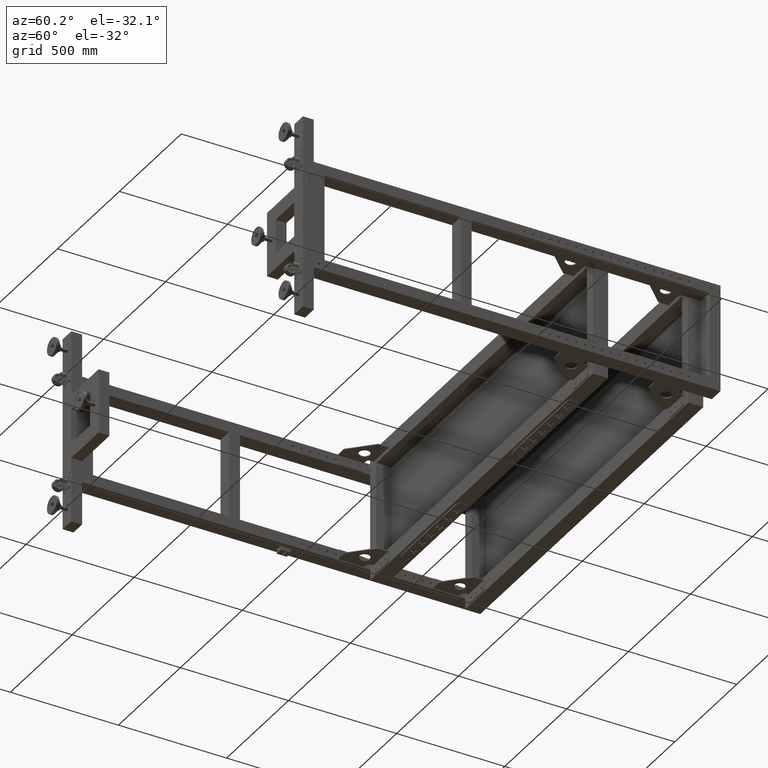
[diagram: clean part render]
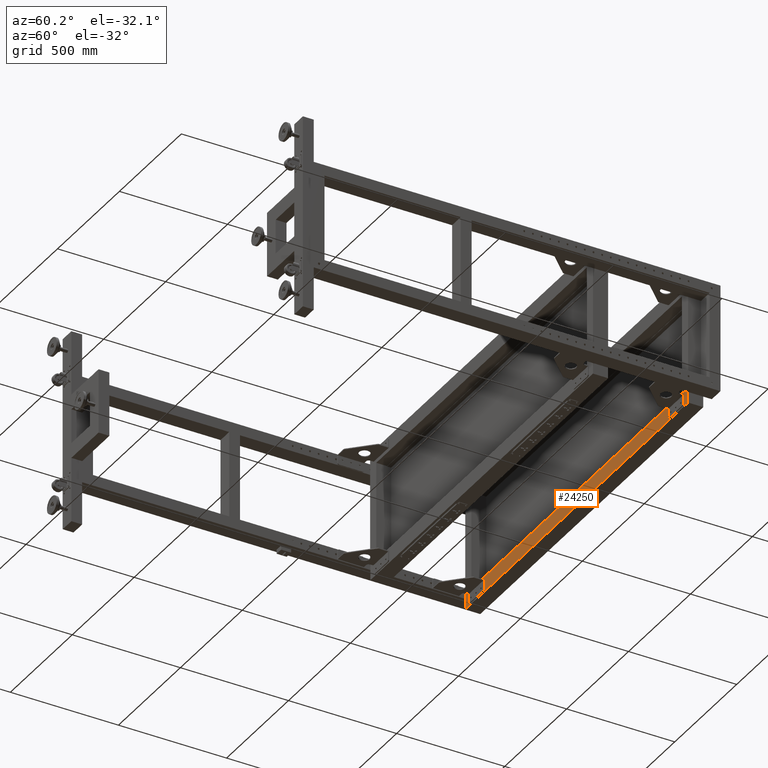
[diagram: same view with one face highlighted and labeled with its STEP entity id]
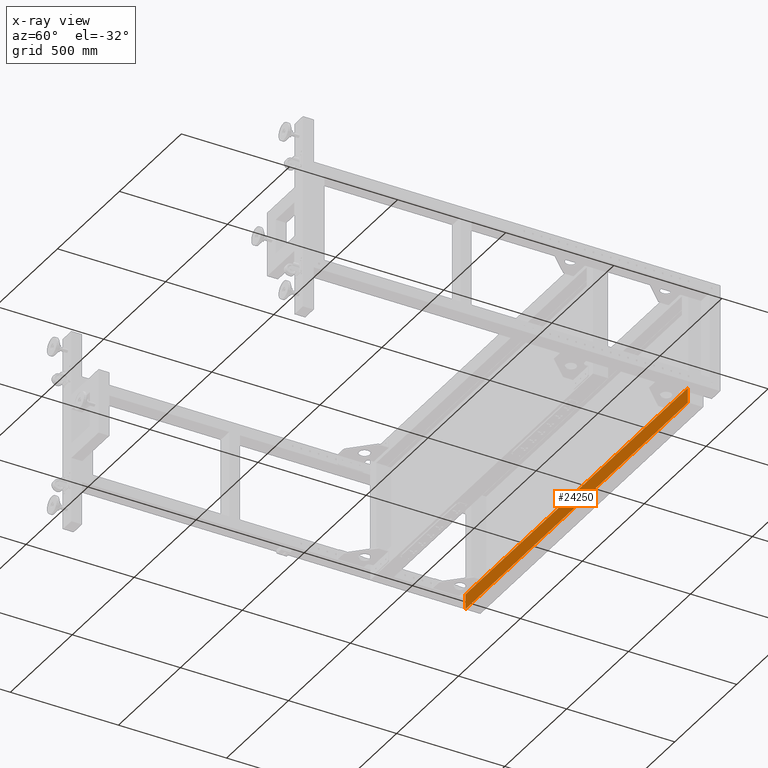
[diagram: x-ray of the same camera — body ghosted, the highlighted face saturated]
A machine part, auxiliary view. The second image highlights one B-rep face of the part: STEP entity #24250.
The next image is the same camera in x-ray: the body ghosted, the highlighted face saturated — about 0% of this face is hidden behind the body in this view.
In plain terms, the highlighted planar face has unit normal (-0, 1, 0).
Its self-contained STEP definition (entity closure, byte-faithful):
#497 = VECTOR ( 'NONE', #64886, 1000.000000000000000 ) ;
#1540 = DIRECTION ( 'NONE',  ( 1.107215402576129614E-30, -4.000000000000000311E-15, 1.000000000000000000 ) ) ;
#2698 = LINE ( 'NONE', #74147, #78250 ) ;
#4727 = DIRECTION ( 'NONE',  ( 1.107215402576129614E-30, -4.000000000000000311E-15, 1.000000000000000000 ) ) ;
#6933 = DIRECTION ( 'NONE',  ( 0.000000000000000000, -4.000000000000000311E-15, 1.000000000000000000 ) ) ;
#7520 = CARTESIAN_POINT ( 'NONE',  ( -1316.172487437185964, 926.9410804020142223, -299.9999999999991473 ) ) ;
#9253 = ORIENTED_EDGE ( 'NONE', *, *, #69134, .F. ) ;
#11943 = VERTEX_POINT ( 'NONE', #21617 ) ;
#17468 = PLANE ( 'NONE',  #26569 ) ;
#18263 = DIRECTION ( 'NONE',  ( -2.768038506440323819E-16, 1.000000000000000000, 4.000000000000000311E-15 ) ) ;
#21617 = CARTESIAN_POINT ( 'NONE',  ( 479.8275125628156275, 926.9410804020144496, -299.9999999999991473 ) ) ;
#22746 = VECTOR ( 'NONE', #73980, 1000.000000000000000 ) ;
#23052 = CARTESIAN_POINT ( 'NONE',  ( 379.8275125628156843, 926.9410804020144496, -299.9999999999991473 ) ) ;
#24250 = ADVANCED_FACE ( 'NONE', ( #41436 ), #17468, .F. ) ;
#25313 = LINE ( 'NONE', #49661, #22746 ) ;
#26267 = CARTESIAN_POINT ( 'NONE',  ( 479.8275125628156275, 926.9410804020139949, -229.9999999999991473 ) ) ;
#26569 = AXIS2_PLACEMENT_3D ( 'NONE', #23052, #18263, #4727 ) ;
#27218 = VERTEX_POINT ( 'NONE', #56478 ) ;
#32838 = ORIENTED_EDGE ( 'NONE', *, *, #43232, .T. ) ;
#34473 = VERTEX_POINT ( 'NONE', #26267 ) ;
#36038 = VECTOR ( 'NONE', #6933, 1000.000000000000000 ) ;
#36582 = EDGE_CURVE ( 'NONE', #11943, #34473, #2698, .T. ) ;
#37336 = ORIENTED_EDGE ( 'NONE', *, *, #59407, .F. ) ;
#40167 = CARTESIAN_POINT ( 'NONE',  ( 379.8275125628156843, 926.9410804020139949, -229.9999999999991473 ) ) ;
#41436 = FACE_OUTER_BOUND ( 'NONE', #45104, .T. ) ;
#43232 = EDGE_CURVE ( 'NONE', #34473, #27218, #77608, .T. ) ;
#45104 = EDGE_LOOP ( 'NONE', ( #37336, #66349, #32838, #9253 ) ) ;
#49661 = CARTESIAN_POINT ( 'NONE',  ( 379.8275125628156843, 926.9410804020144496, -299.9999999999991473 ) ) ;
#56478 = CARTESIAN_POINT ( 'NONE',  ( -1316.172487437185964, 926.9410804020137675, -229.9999999999991473 ) ) ;
#59407 = EDGE_CURVE ( 'NONE', #11943, #62246, #25313, .T. ) ;
#62246 = VERTEX_POINT ( 'NONE', #7520 ) ;
#62772 = LINE ( 'NONE', #74722, #36038 ) ;
#64886 = DIRECTION ( 'NONE',  ( -1.000000000000000000, -2.768038506440323819E-16, 0.000000000000000000 ) ) ;
#66349 = ORIENTED_EDGE ( 'NONE', *, *, #36582, .T. ) ;
#69134 = EDGE_CURVE ( 'NONE', #62246, #27218, #62772, .T. ) ;
#73980 = DIRECTION ( 'NONE',  ( -1.000000000000000000, -2.768038506440323819E-16, 0.000000000000000000 ) ) ;
#74147 = CARTESIAN_POINT ( 'NONE',  ( 479.8275125628156275, 926.9410804020144496, -299.9999999999991473 ) ) ;
#74722 = CARTESIAN_POINT ( 'NONE',  ( -1316.172487437185964, 926.9410804020142223, -299.9999999999991473 ) ) ;
#77608 = LINE ( 'NONE', #40167, #497 ) ;
#78250 = VECTOR ( 'NONE', #1540, 1000.000000000000000 ) ;